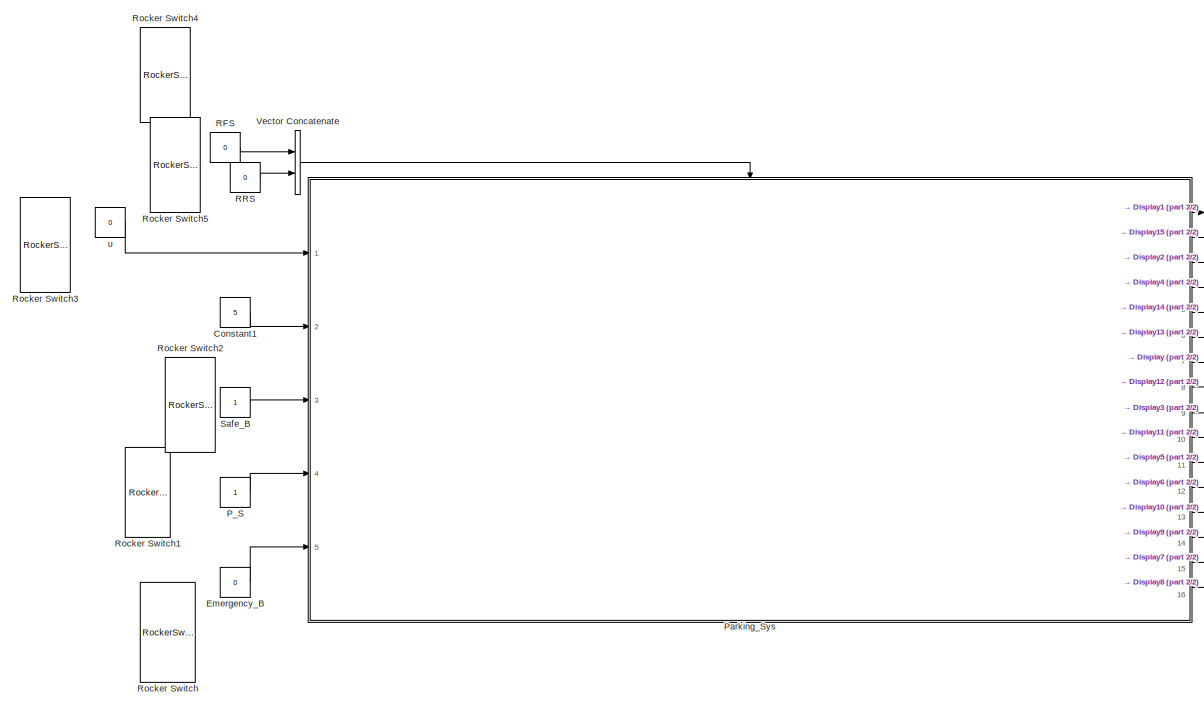
[diagram: root canvas - part 1/2, left side, full height]
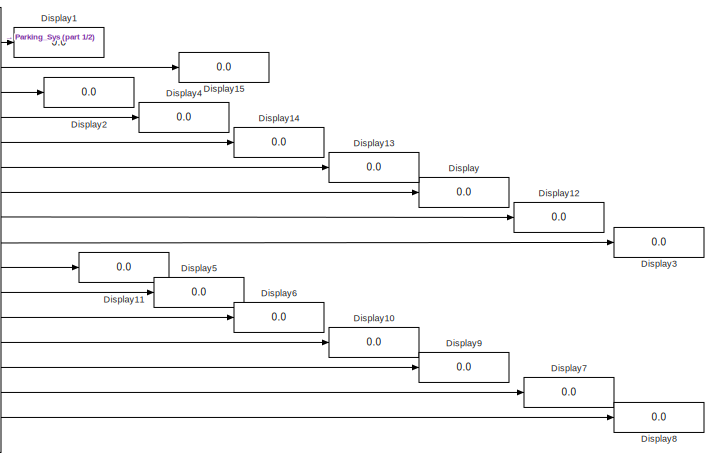
[diagram: root canvas - part 2/2, middle right region]
MODEL slx_bb3c26a02f3b
KIND model
CONFIG AbsTol = auto
CONFIG EnableMultiTasking = off
CONFIG FixedStep = auto
CONFIG MaxStep = auto
CONFIG MinStep = auto
CONFIG RelTol = 1e-3
CONFIG SampleTimeConstraint = Unconstrained
CONFIG Solver = VariableStepAuto
CONFIG SolverName = VariableStepAuto
CONFIG StartTime = 0.0
CONFIG StopTime = inf
BLOCK [Constant] Constant1
  Value = 5
BLOCK [Display] Display
  Decimation = 1
  Ports = [1]
BLOCK [Display] Display1
  Decimation = 1
  Ports = [1]
BLOCK [Display] Display10
  Decimation = 1
  Ports = [1]
BLOCK [Display] Display11
  Decimation = 1
  Ports = [1]
BLOCK [Display] Display12
  Decimation = 1
  Ports = [1]
BLOCK [Display] Display13
  Decimation = 1
  Ports = [1]
BLOCK [Display] Display14
  Decimation = 1
  Ports = [1]
BLOCK [Display] Display15
  Decimation = 1
  Ports = [1]
BLOCK [Display] Display2
  Decimation = 1
  Ports = [1]
BLOCK [Display] Display3
  Decimation = 1
  Ports = [1]
BLOCK [Display] Display4
  Decimation = 1
  Ports = [1]
BLOCK [Display] Display5
  Decimation = 1
  Ports = [1]
BLOCK [Display] Display6
  Decimation = 1
  Ports = [1]
BLOCK [Display] Display7
  Decimation = 1
  Ports = [1]
BLOCK [Display] Display8
  Decimation = 1
  Ports = [1]
BLOCK [Display] Display9
  Decimation = 1
  Ports = [1]
BLOCK [Constant] Emergency_B
  Value = 0
BLOCK [Constant] P_S
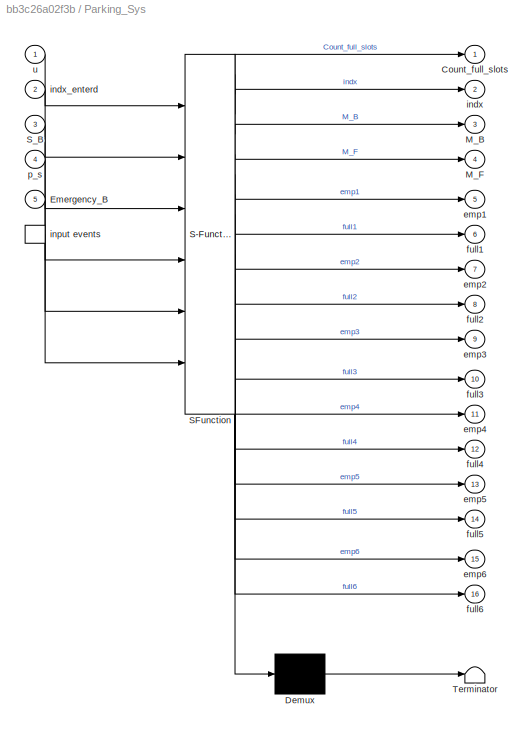
BLOCK [SubSystem] Parking_Sys
  BlockKeywords = __PRM__SERIALIZED__DATA__:Stateflow Chart,Stateflow Diagram
  ErrorFcn = Stateflow.Translate.translate
  PermitHierarchicalResolution = ExplicitOnly
  Ports = [5, 16, 0, 1]
  RequestExecContextInheritance = off
  SFBlockType = Chart
  TreatAsAtomicUnit = on
BLOCK [Demux] Parking_Sys/ Demux 
  Outputs = 1
  Ports = [1, 1]
BLOCK [S-Function] Parking_Sys/ SFunction 
  EnableBusSupport = on
  FunctionName = sf_sfun
  PortCounts = [6 17]
  Ports = [6, 17]
  SFcnIsStateOwnerBlock = off
  SFunctionDeploymentMode = off
  Tag = Stateflow S-Function M4_state_flow 3
BLOCK [Terminator] Parking_Sys/ Terminator 
BLOCK [Outport] Parking_Sys/Count_full_slots
  IconDisplay = Port number
BLOCK [Inport] Parking_Sys/Emergency_B
  IconDisplay = Port number
  Port = 5
BLOCK [Outport] Parking_Sys/M_B
  IconDisplay = Port number
  Port = 3
BLOCK [Outport] Parking_Sys/M_F
  IconDisplay = Port number
  Port = 4
BLOCK [Inport] Parking_Sys/S_B
  IconDisplay = Port number
  Port = 3
BLOCK [Outport] Parking_Sys/emp1
  IconDisplay = Port number
  Port = 5
BLOCK [Outport] Parking_Sys/emp2
  IconDisplay = Port number
  Port = 7
BLOCK [Outport] Parking_Sys/emp3
  IconDisplay = Port number
  Port = 9
BLOCK [Outport] Parking_Sys/emp4
  IconDisplay = Port number
  Port = 11
BLOCK [Outport] Parking_Sys/emp5
  IconDisplay = Port number
  Port = 13
BLOCK [Outport] Parking_Sys/emp6
  IconDisplay = Port number
  Port = 15
BLOCK [Outport] Parking_Sys/full1
  IconDisplay = Port number
  Port = 6
BLOCK [Outport] Parking_Sys/full2
  IconDisplay = Port number
  Port = 8
BLOCK [Outport] Parking_Sys/full3
  IconDisplay = Port number
  Port = 10
BLOCK [Outport] Parking_Sys/full4
  IconDisplay = Port number
  Port = 12
BLOCK [Outport] Parking_Sys/full5
  IconDisplay = Port number
  Port = 14
BLOCK [Outport] Parking_Sys/full6
  IconDisplay = Port number
  Port = 16
BLOCK [Outport] Parking_Sys/indx
  IconDisplay = Port number
  Port = 2
BLOCK [Inport] Parking_Sys/indx_enterd
  IconDisplay = Port number
  Port = 2
BLOCK [TriggerPort] Parking_Sys/input events
  Ports = [0, 1]
  ShowOutputPort = on
  StatesWhenEnabling = held
  VariantControl = (inherit)
BLOCK [Inport] Parking_Sys/p_s
  IconDisplay = Port number
  Port = 4
BLOCK [Inport] Parking_Sys/u
  IconDisplay = Port number
BLOCK [Constant] RFS
  Value = 0
BLOCK [Constant] RRS
  Value = 0
BLOCK [RockerSwitchBlock] Rocker Switch
BLOCK [RockerSwitchBlock] Rocker Switch1
BLOCK [RockerSwitchBlock] Rocker Switch2
BLOCK [RockerSwitchBlock] Rocker Switch3
BLOCK [RockerSwitchBlock] Rocker Switch4
BLOCK [RockerSwitchBlock] Rocker Switch5
BLOCK [Constant] Safe_B
BLOCK [Concatenate] Vector Concatenate
  Ports = [2, 1]
BLOCK [Constant] u
  Value = 0
LINE Constant1:1 -> Parking_Sys:2
LINE Emergency_B:1 -> Parking_Sys:5
LINE P_S:1 -> Parking_Sys:4
LINE Parking_Sys:1 -> Display1:1
LINE Parking_Sys:10 -> Display11:1
LINE Parking_Sys:11 -> Display5:1
LINE Parking_Sys:12 -> Display6:1
LINE Parking_Sys:13 -> Display10:1
LINE Parking_Sys:14 -> Display9:1
LINE Parking_Sys:15 -> Display7:1
LINE Parking_Sys:16 -> Display8:1
LINE Parking_Sys:2 -> Display15:1
LINE Parking_Sys:3 -> Display2:1
LINE Parking_Sys:4 -> Display4:1
LINE Parking_Sys:5 -> Display14:1
LINE Parking_Sys:6 -> Display13:1
LINE Parking_Sys:7 -> Display:1
LINE Parking_Sys:8 -> Display12:1
LINE Parking_Sys:9 -> Display3:1
LINE RFS:1 -> Vector Concatenate:1
LINE RRS:1 -> Vector Concatenate:2
LINE Safe_B:1 -> Parking_Sys:3
LINE Vector Concatenate:1 -> Parking_Sys:trigger
LINE u:1 -> Parking_Sys:1
CHART Parking_Sys states=31 transitions=73
  STATE_LABEL 'System\n'
  STATE_LABEL 'Power_on'
  STATE_LABEL 'Slots\nentry: emp1 = 1;\nentry:emp2 = 1;\nentry:emp3 = 1;\nentry:emp4 = 1;\nentry:emp5 = 1;\nentry:emp6 = 1;\nentry: full1 = 0;\nentry: full2=0;\nentry: full3=0;\nentry: full4=0;\nentry: full5=0;\nentry: full6=0;'
  STATE_LABEL 'Slot1\nentry: indx =1;\nentry: M_F=0;\nentry: M_B=0;\n'
  STATE_LABEL 'check'
  STATE_LABEL 'Full\nentry: full1 = 1;'
  STATE_LABEL 'Empty\nentry: emp1 = 1;'
  STATE_LABEL '[full1==1&&emp1==0]'
  STATE_LABEL '[emp1==1&& full1==0]'
  STATE_LABEL 'R_F_S[u == 0]{emp1=0;}'
  STATE_LABEL 'R_R_S[indx_enterd == indx && u==1]{full1=0;}'
  STATE_LABEL 'Slot6\nentry: indx =6;\nentry: M_F=0;\nentry: M_B=0;\n'
  STATE_LABEL 'check'
  STATE_LABEL 'Full\nentry: full6 = 1;'
  STATE_LABEL 'Empty\nentry: emp6 = 1;'
  STATE_LABEL '[emp6==1&& full6==0]'
  STATE_LABEL '[full6==1&&emp6==0]'
  STATE_LABEL 'R_F_S[u == 0]{emp6=0;}'
  STATE_LABEL 'R_R_S[indx_enterd == indx && u==1]{full6=0;}'
  STATE_LABEL 'Slot2\nentry: indx =2;\nentry: M_F=0;\nentry: M_B=0;\n'
  STATE_LABEL 'check'
  STATE_LABEL 'Empty\nentry: emp2 = 1;'
  STATE_LABEL 'Full\nentry: full2 = 1;'
  STATE_LABEL '[full2==1&&emp2==0]'
  STATE_LABEL '[emp2==1&& full2==0]'
  STATE_LABEL 'R_F_S[u==0]{emp2=0;}'
  STATE_LABEL 'R_R_S[indx_enterd==indx && u==1]{full2=0;}'
  STATE_LABEL 'Slot5\nentry: indx=5;\nentry: M_F=0;\nentry: M_B=0;'
  STATE_LABEL 'check'
  STATE_LABEL 'Empty\nentry: emp5 = 1;'
  STATE_LABEL 'Full\nentry: full5 = 1;'
  STATE_LABEL '[full5==1&&emp5==0]'
  STATE_LABEL '[emp4==1&& full4==0]'
  STATE_LABEL 'R_F_S[u == 0]{emp5=0;}'
  STATE_LABEL 'R_R_S[indx_enterd == indx && u==1]{full5=0;}'
  STATE_LABEL 'Slot4\nentry: indx =4;\nentry: M_F=0;\nentry: M_B=0;'
  STATE_LABEL 'check'
  STATE_LABEL 'Empty\nentry: emp4 = 1;'
  STATE_LABEL 'Full\nentry: full4 = 1;'
  STATE_LABEL '[emp4==1&& full4==0]'
